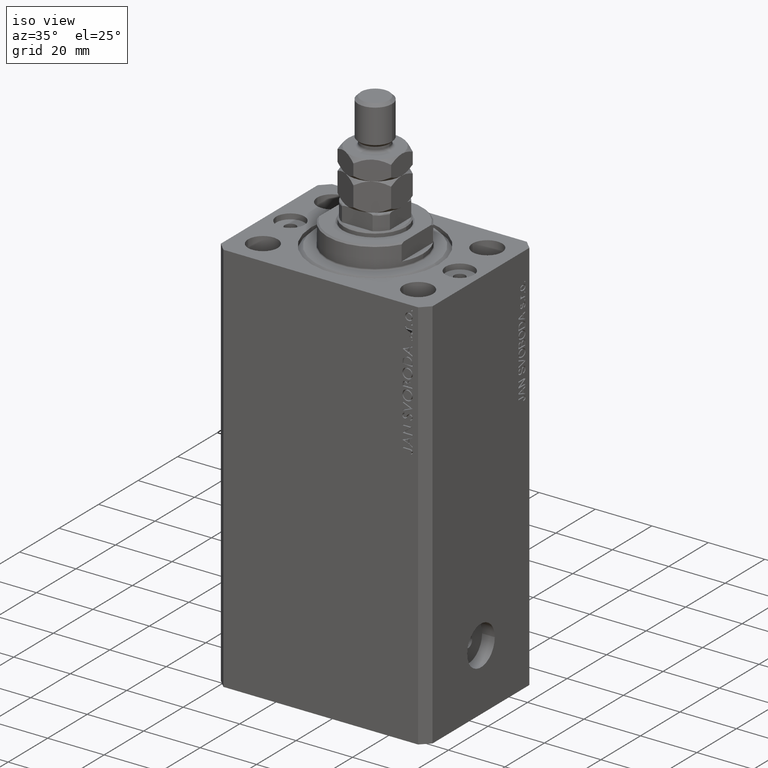
[diagram: clean part render]
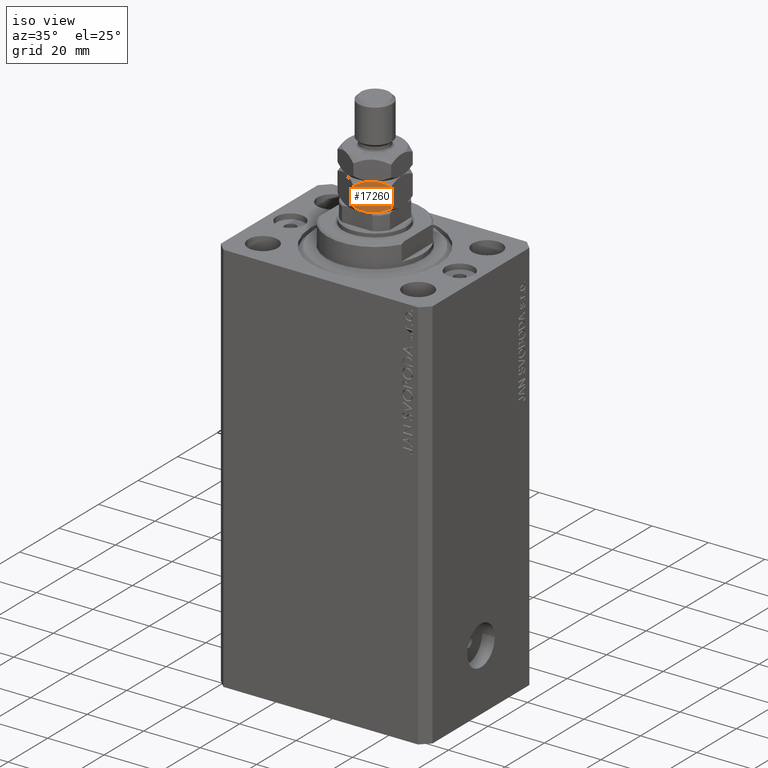
[diagram: same view with one face highlighted and labeled with its STEP entity id]
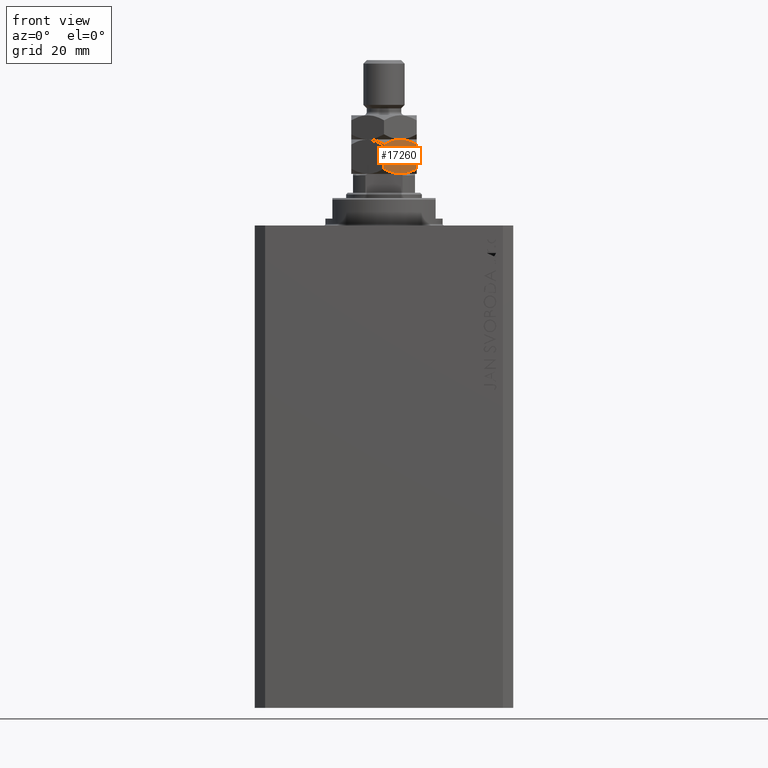
[diagram: same view with one face highlighted and labeled with its STEP entity id]
A machine part, iso view. The second image highlights one B-rep face of the part: STEP entity #17260.
A second angle (front view) of the same face is appended — the face is thin or edge-on in the first view.
In plain terms, the highlighted planar face has unit normal (-0.5, 0.866, 0).
Its self-contained STEP definition (entity closure, byte-faithful):
#538 = CARTESIAN_POINT ( 'NONE',  ( -3.001642536556159024E-15, -10.96965511460288667, 8.530344885397118659 ) ) ;
#2126 = ORIENTED_EDGE ( 'NONE', *, *, #22933, .F. ) ;
#2443 = PLANE ( 'NONE',  #40588 ) ;
#3994 = CARTESIAN_POINT ( 'NONE',  ( 1.506594318812379374, -10.09982247907699637, 9.325825117528726338 ) ) ;
#4083 = CARTESIAN_POINT ( 'NONE',  ( 8.755131854751340370, -5.914877381471539408, 1.039605290432796370 ) ) ;
#5823 = CARTESIAN_POINT ( 'NONE',  ( 3.923784602134042565, -8.704257018318692474, -9.910285482875310023E-16 ) ) ;
#5895 = CARTESIAN_POINT ( 'NONE',  ( -3.035766082959412415E-15, -10.96965511460288667, 10.00000000000000000 ) ) ;
#7363 = CARTESIAN_POINT ( 'NONE',  ( 4.749999999999993783, -8.227241335952166779, 10.00000000000000000 ) ) ;
#7530 = CARTESIAN_POINT ( 'NONE',  ( 5.166021702288269069, -7.987051094147306074, -7.826584432629735133E-16 ) ) ;
#7558 = B_SPLINE_CURVE_WITH_KNOTS ( 'NONE', 3,
 ( #15931, #4083, #15203, #18671, #30484, #19146, #7530, #38375 ),
 .UNSPECIFIED., .F., .F.,
 ( 4, 2, 2, 4 ),
 ( 2.544312669946945821E-07, 0.002843014744722344601, 0.004264394901450021744, 0.005685775058177697586 ),
 .UNSPECIFIED. ) ;
#8854 = DIRECTION ( 'NONE',  ( -0.000000000000000000, -0.000000000000000000, -1.000000000000000000 ) ) ;
#9776 = VERTEX_POINT ( 'NONE', #22678 ) ;
#10383 = EDGE_CURVE ( 'NONE', #17118, #20626, #16681, .T. ) ;
#11047 = ORIENTED_EDGE ( 'NONE', *, *, #42152, .F. ) ;
#11279 = EDGE_LOOP ( 'NONE', ( #29929, #2126, #11047, #18376, #31161, #16190 ) ) ;
#12070 = LINE ( 'NONE', #27138, #36304 ) ;
#13298 = DIRECTION ( 'NONE',  ( -0.4999999999999995004, 0.8660254037844390407, 0.000000000000000000 ) ) ;
#14556 = CARTESIAN_POINT ( 'NONE',  ( 7.990178599141542826, -6.356523349515335042, 9.328363030548731061 ) ) ;
#15047 = CARTESIAN_POINT ( 'NONE',  ( 6.388382028668173618, -7.281321030665154126, 9.854124384224535405 ) ) ;
#15116 = CARTESIAN_POINT ( 'NONE',  ( 4.333978297711719385, -8.467431577757029260, 10.00000000000000178 ) ) ;
#15203 = CARTESIAN_POINT ( 'NONE',  ( 7.993405681187615741, -6.354660192827339849, 0.6741748824712785471 ) ) ;
#15592 = CARTESIAN_POINT ( 'NONE',  ( 3.091726368128221658, -9.184646063703393537, 9.820258145287965590 ) ) ;
#15931 = CARTESIAN_POINT ( 'NONE',  ( 9.500000000000000000, -5.484827557301446888, 1.469655114602885337 ) ) ;
#16190 = ORIENTED_EDGE ( 'NONE', *, *, #10383, .F. ) ;
#16652 = VERTEX_POINT ( 'NONE', #7363 ) ;
#16681 = B_SPLINE_CURVE_WITH_KNOTS ( 'NONE', 3,
 ( #16704, #5823, #20882, #35183, #35922, #36826 ),
 .UNSPECIFIED., .F., .F.,
 ( 4, 2, 4 ),
 ( 0.005685775058177697586, 0.008508623398180328867, 0.01133147173818295841 ),
 .UNSPECIFIED. ) ;
#16704 = CARTESIAN_POINT ( 'NONE',  ( 4.749999999999995559, -8.227241335952170331, 0.000000000000000000 ) ) ;
#17118 = VERTEX_POINT ( 'NONE', #34054 ) ;
#17260 = ADVANCED_FACE ( 'NONE', ( #28847 ), #2443, .F. ) ;
#18376 = ORIENTED_EDGE ( 'NONE', *, *, #45588, .F. ) ;
#18671 = CARTESIAN_POINT ( 'NONE',  ( 6.809745054052667612, -7.038046974532859323, 0.2834621384311892811 ) ) ;
#19146 = CARTESIAN_POINT ( 'NONE',  ( 5.588267949974988547, -7.743267109381074320, 0.03770576873299950893 ) ) ;
#20626 = VERTEX_POINT ( 'NONE', #20863 ) ;
#20863 = CARTESIAN_POINT ( 'NONE',  ( -2.946964139499808652E-15, -10.96965511460288667, 1.469655114602881563 ) ) ;
#20882 = CARTESIAN_POINT ( 'NONE',  ( 3.111617971331821941, -9.173161641239184760, 0.1458756157754678706 ) ) ;
#21722 = CARTESIAN_POINT ( 'NONE',  ( 5.576215397865946777, -7.750225653585648189, 10.00000000000000000 ) ) ;
#22678 = CARTESIAN_POINT ( 'NONE',  ( -3.001642536556159024E-15, -10.96965511460288667, 8.530344885397118659 ) ) ;
#22933 = EDGE_CURVE ( 'NONE', #46328, #36497, #28220, .T. ) ;
#25962 = CARTESIAN_POINT ( 'NONE',  ( 0.7448681452486567434, -10.53960529043279593, 8.960394709567211180 ) ) ;
#26211 = CARTESIAN_POINT ( 'NONE',  ( 2.690254945947323062, -9.416435697371476010, 9.716537861568811607 ) ) ;
#26456 = CARTESIAN_POINT ( 'NONE',  ( 9.500000000000000000, -5.484827557301447776, 8.530344885397115107 ) ) ;
#27138 = CARTESIAN_POINT ( 'NONE',  ( -3.035766082959412415E-15, -10.96965511460288667, 10.00000000000000000 ) ) ;
#28220 = LINE ( 'NONE', #31916, #29657 ) ;
#28847 = FACE_OUTER_BOUND ( 'NONE', #11279, .T. ) ;
#29032 = EDGE_CURVE ( 'NONE', #36497, #17118, #7558, .T. ) ;
#29366 = CARTESIAN_POINT ( 'NONE',  ( 8.755994125639032788, -5.914379549142412706, 8.959896877238172408 ) ) ;
#29657 = VECTOR ( 'NONE', #39814, 1000.000000000000000 ) ;
#29929 = ORIENTED_EDGE ( 'NONE', *, *, #29032, .F. ) ;
#30116 = CARTESIAN_POINT ( 'NONE',  ( 9.500000000000000000, -5.484827557301446888, 1.469655114602885337 ) ) ;
#30484 = CARTESIAN_POINT ( 'NONE',  ( 6.408273631871770348, -7.269836608200942685, 0.1797418547120343268 ) ) ;
#31161 = ORIENTED_EDGE ( 'NONE', *, *, #34091, .T. ) ;
#31916 = CARTESIAN_POINT ( 'NONE',  ( 9.500000000000000000, -5.484827557301446888, 10.00000000000000000 ) ) ;
#33087 = B_SPLINE_CURVE_WITH_KNOTS ( 'NONE', 3,
 ( #36038, #21722, #15047, #14556, #29366, #33783 ),
 .UNSPECIFIED., .F., .F.,
 ( 4, 2, 4 ),
 ( 0.005685775058177688045, 0.008508623398180323663, 0.01133147173818295841 ),
 .UNSPECIFIED. ) ;
#33783 = CARTESIAN_POINT ( 'NONE',  ( 9.500000000000000000, -5.484827557301447776, 8.530344885397115107 ) ) ;
#34054 = CARTESIAN_POINT ( 'NONE',  ( 4.749999999999995559, -8.227241335952170331, 0.000000000000000000 ) ) ;
#34091 = EDGE_CURVE ( 'NONE', #9776, #20626, #12070, .T. ) ;
#35183 = CARTESIAN_POINT ( 'NONE',  ( 1.509821400858451845, -10.09795932238899852, 0.6716369694512650534 ) ) ;
#35922 = CARTESIAN_POINT ( 'NONE',  ( 0.7440058743609598846, -10.54010312276192174, 1.040103122761826704 ) ) ;
#36038 = CARTESIAN_POINT ( 'NONE',  ( 4.749999999999993783, -8.227241335952166779, 10.00000000000000000 ) ) ;
#36304 = VECTOR ( 'NONE', #8854, 1000.000000000000000 ) ;
#36497 = VERTEX_POINT ( 'NONE', #30116 ) ;
#36826 = CARTESIAN_POINT ( 'NONE',  ( -2.946964139499808652E-15, -10.96965511460288667, 1.469655114602881563 ) ) ;
#38375 = CARTESIAN_POINT ( 'NONE',  ( 4.749999999999995559, -8.227241335952170331, 0.000000000000000000 ) ) ;
#39205 = DIRECTION ( 'NONE',  ( -0.8660254037844389297, -0.4999999999999994449, 0.000000000000000000 ) ) ;
#39814 = DIRECTION ( 'NONE',  ( -0.000000000000000000, -0.000000000000000000, -1.000000000000000000 ) ) ;
#40588 = AXIS2_PLACEMENT_3D ( 'NONE', #5895, #13298, #39205 ) ;
#41019 = CARTESIAN_POINT ( 'NONE',  ( 3.911732050025005236, -8.711215562523266343, 9.962294231267000200 ) ) ;
#42152 = EDGE_CURVE ( 'NONE', #16652, #46328, #33087, .T. ) ;
#42927 = B_SPLINE_CURVE_WITH_KNOTS ( 'NONE', 3,
 ( #538, #25962, #3994, #26211, #15592, #41019, #15116, #48655 ),
 .UNSPECIFIED., .F., .F.,
 ( 4, 2, 2, 4 ),
 ( 2.544312669947217401E-07, 0.002843014744722341565, 0.004264394901450014805, 0.005685775058177688045 ),
 .UNSPECIFIED. ) ;
#45588 = EDGE_CURVE ( 'NONE', #9776, #16652, #42927, .T. ) ;
#46328 = VERTEX_POINT ( 'NONE', #26456 ) ;
#48655 = CARTESIAN_POINT ( 'NONE',  ( 4.749999999999993783, -8.227241335952166779, 10.00000000000000000 ) ) ;